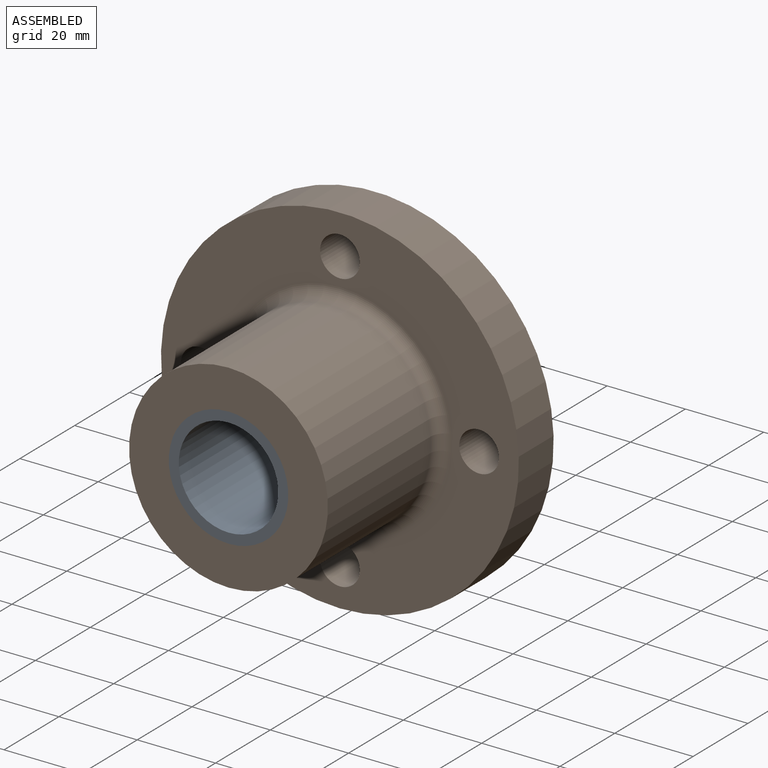
[diagram: assembled view]
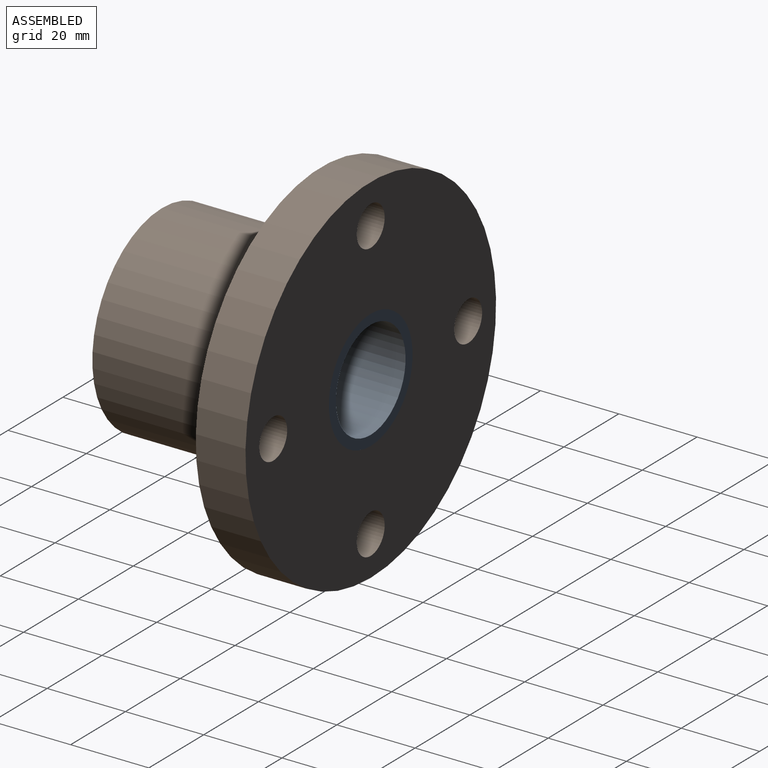
[diagram: assembled view, second angle]
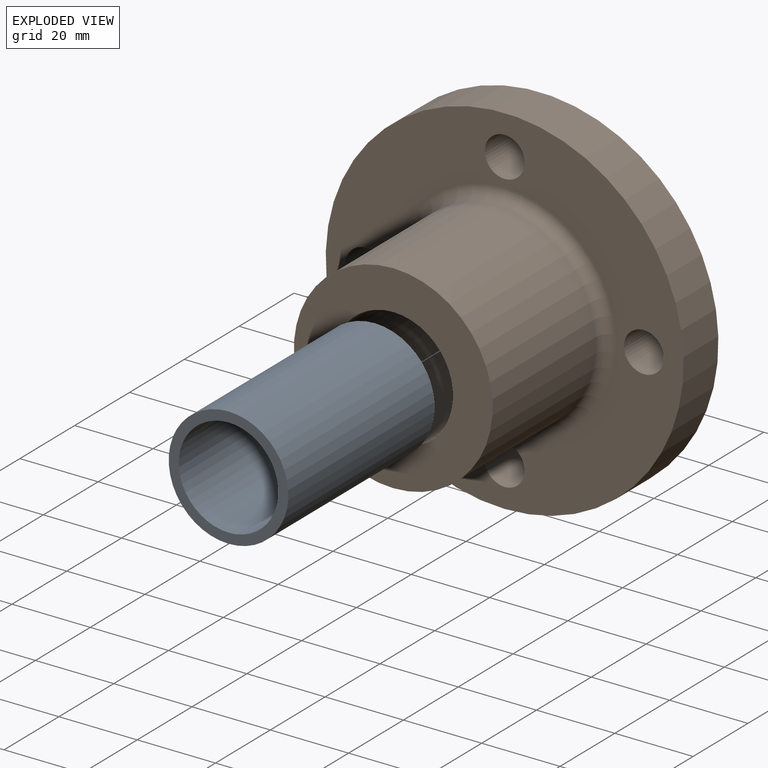
[diagram: exploded view]
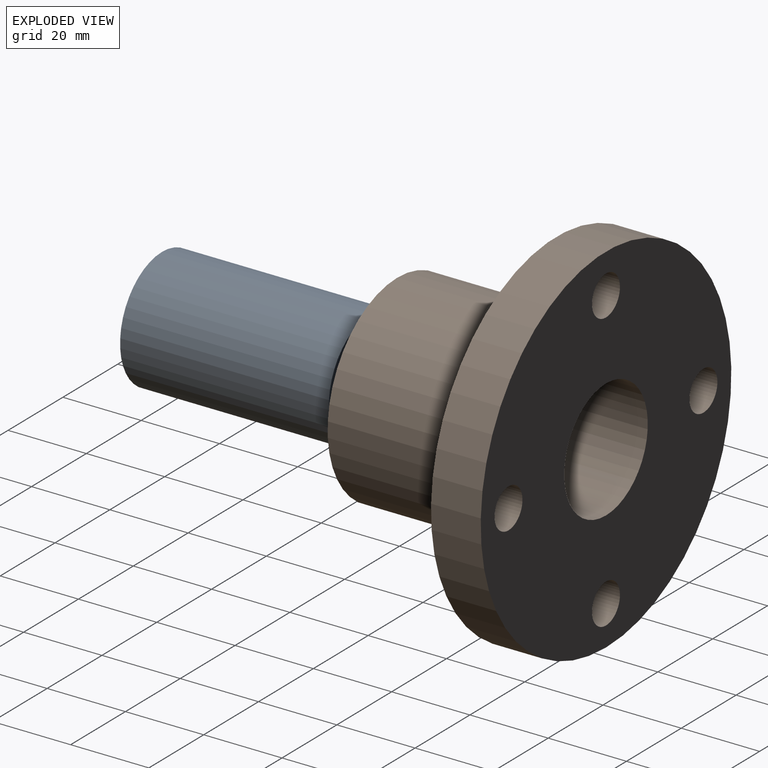
[diagram: exploded view, second angle]
ASSEMBLY  parts=2 mates=2
PART A: 4 faces, bbox 30.6x53.3x30.6 mm
  f0: cylinder r=12.71mm len=53.34mm, axis (0,1,0), area 4259.7mm2, adj f2,f3
  f1: cylinder r=15.28mm len=53.34mm, axis (0,1,0), area 5120.8mm2, adj f2,f3
  f2: plane 30.56x30.56mm, normal (0,-1,0), area 225.9mm2, adj f0,f1
  f3: plane 30.56x30.56mm, normal (0,1,0), area 225.9mm2, adj f0,f1
PART B: 11 faces, bbox 91.4x53.3x91.4 mm
  f0: cylinder r=15.24mm len=53.34mm, axis (0,1,0), area 5107.6mm2, adj f2,f3
  f1: cylinder r=25.4mm len=50.8mm, axis (0,1,0), area 5999.4mm2, adj f2,f10
  f2: plane 50.8x50.8mm, normal (0,-1,0), area 1297.2mm2, adj f0,f1
  f3: plane 91.44x91.44mm, normal (0,1,0), area 5513mm2, adj f0,f4,f5,f6,f7,f8
  f4: cylinder r=5.08mm len=12.7mm, axis (0,1,0), area 405.4mm2, adj f3,f9
  f5: cylinder r=5.08mm len=12.7mm, axis (0,1,0), area 405.4mm2, adj f3,f9
  f6: cylinder r=5.08mm len=12.7mm, axis (0,1,0), area 405.4mm2, adj f3,f9
  f7: cylinder r=5.08mm len=12.7mm, axis (0,1,0), area 405.4mm2, adj f3,f9
  f8: cylinder r=45.72mm len=91.44mm, axis (0,1,0), area 3648.3mm2, adj f3,f9
  f9: plane 91.44x91.44mm, normal (0,-1,0), area 3700.2mm2, adj f4,f5,f6,f7,f8,f10
  f10: torus R=28.45mm, axis (0,-1,0), area 797.4mm2, adj f1,f9
PLACE A t=(0,26.67,0)mm
PLACE B t=(0,26.67,0)mm
MATE planar A.f1 <-> B.f1  axis (0,-1,0) through (0,-26.67,0)mm
MATE cylindrical B.f1 <-> A.f0  axis (0,-1,0) through (0,-26.67,0)mm
